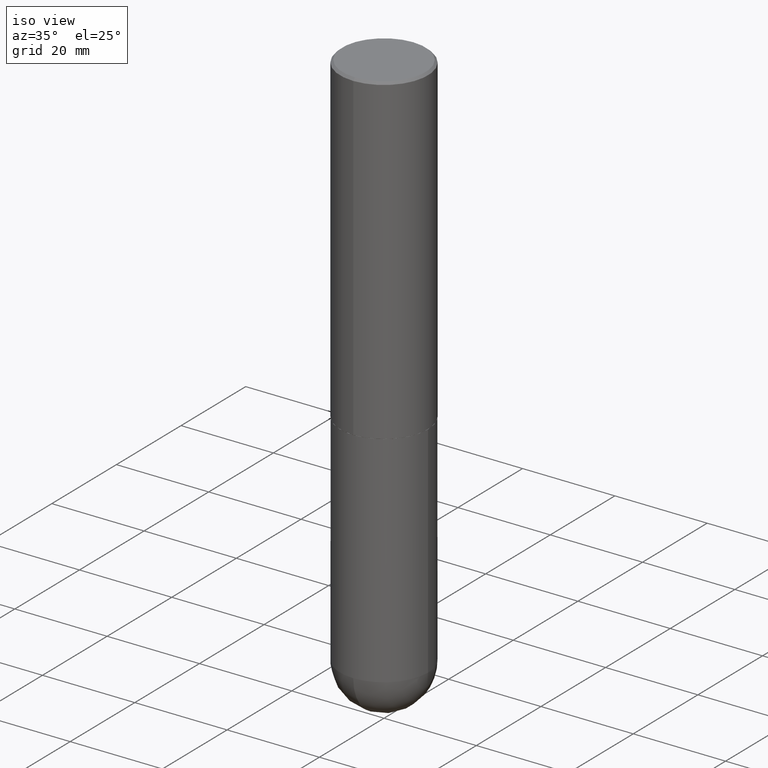
[diagram: clean part render]
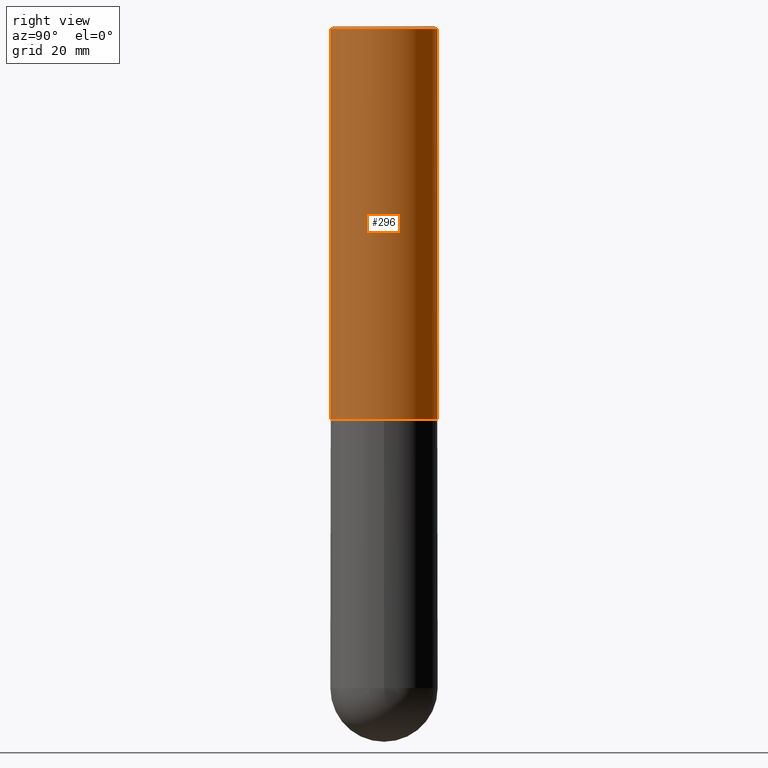
[diagram: tour spotlight — one face highlighted and labeled with its STEP entity id]
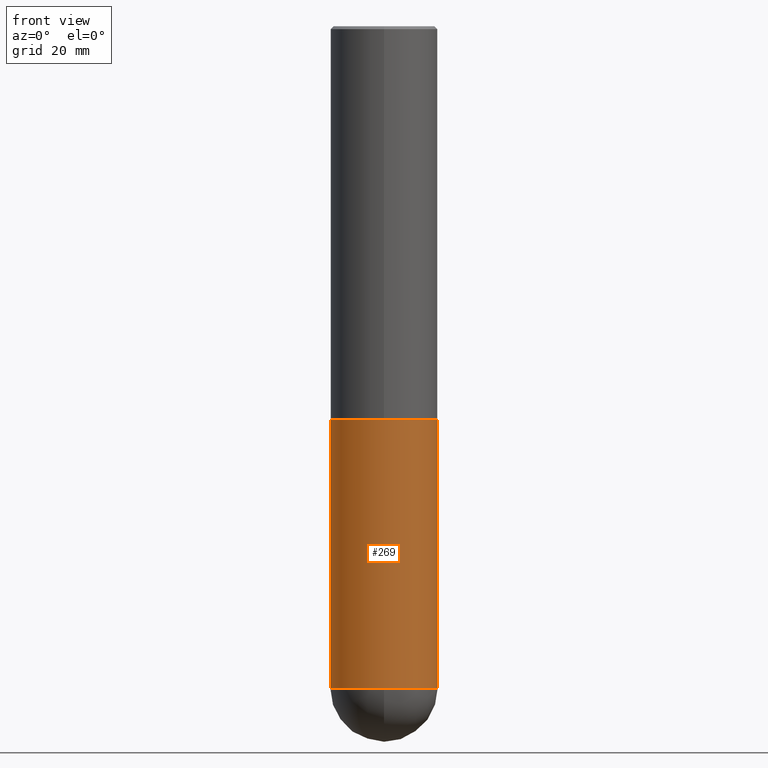
[diagram: tour spotlight — one face highlighted and labeled with its STEP entity id]
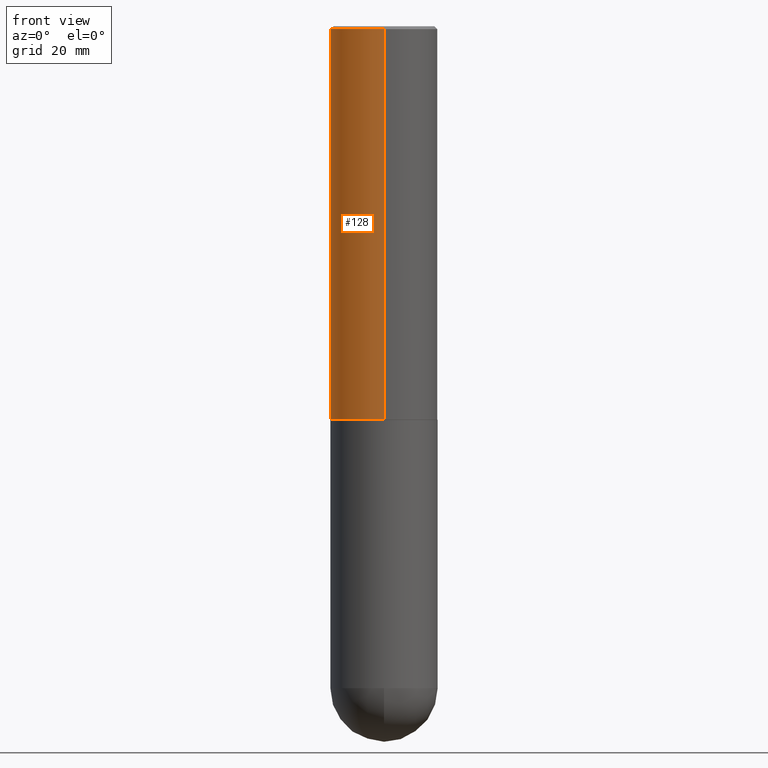
[diagram: tour spotlight — one face highlighted and labeled with its STEP entity id]
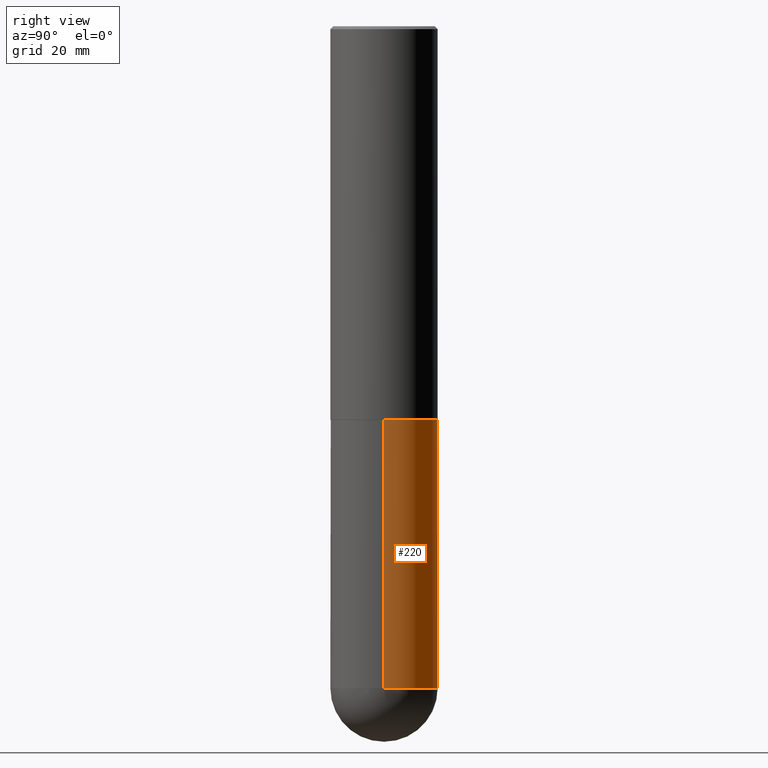
[diagram: tour spotlight — one face highlighted and labeled with its STEP entity id]
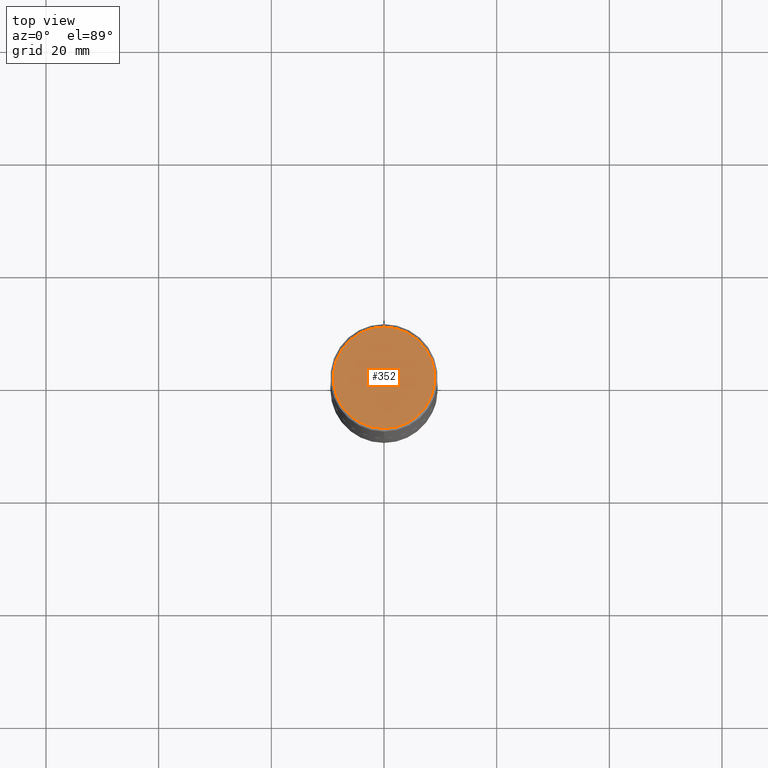
[diagram: tour spotlight — one face highlighted and labeled with its STEP entity id]
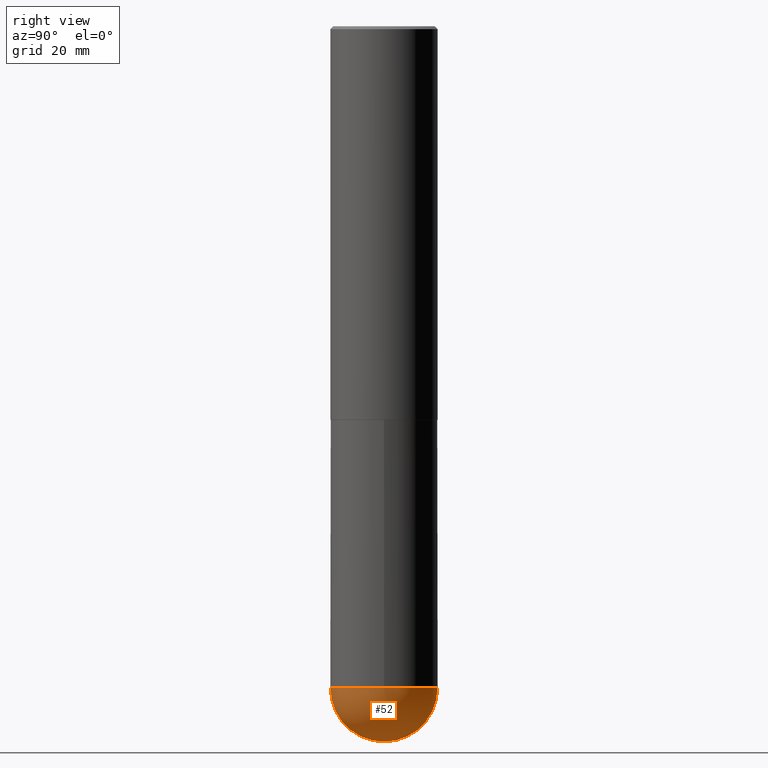
[diagram: tour spotlight — one face highlighted and labeled with its STEP entity id]
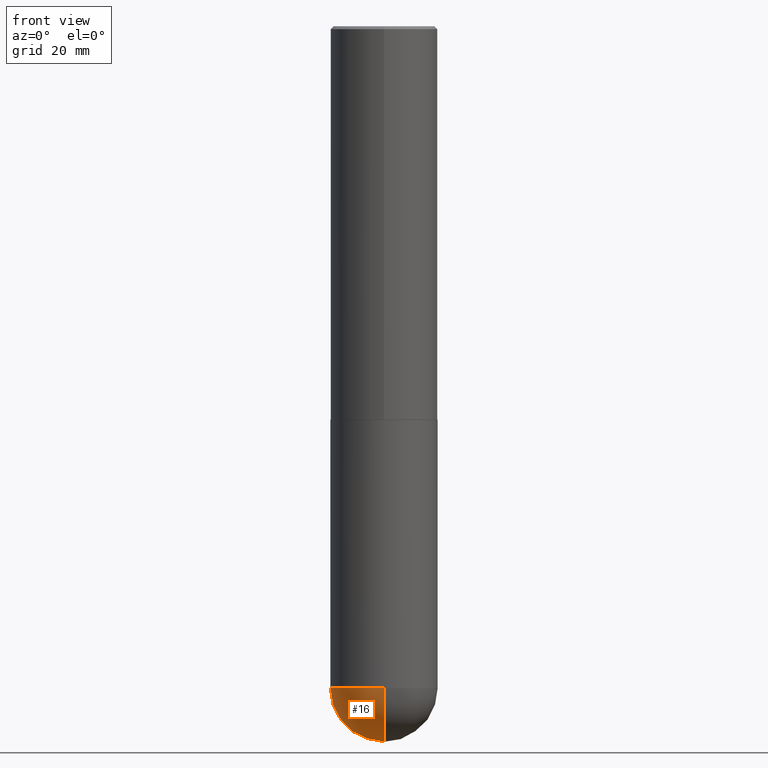
[diagram: tour spotlight — one face highlighted and labeled with its STEP entity id]
A machine part: a face-by-face anatomy tour. The part has 13 B-rep faces; the first image is the clean iso view, then the 7 largest visible faces are spotlighted one at a time (largest first), each with its STEP entity span.

Face 1 — right view, entity #296. In plain terms, the highlighted cylindrical surface (partial cylindrical patch) has radius 9.525 mm, axis along (-0, 0, 1).
Definition (entity closure, byte-faithful):
#2 = AXIS2_PLACEMENT_3D ( 'NONE', #162, #359, #22 ) ;
#19 = AXIS2_PLACEMENT_3D ( 'NONE', #330, #298, #24 ) ;
#22 = DIRECTION ( 'NONE',  ( -6.982962677686266711E-15, -1.000000000000000000, 3.494488891895537218E-15 ) ) ;
#24 = DIRECTION ( 'NONE',  ( -6.982962677686265922E-15, -1.000000000000000000, 2.913971193241877216E-15 ) ) ;
#36 = CARTESIAN_POINT ( 'NONE',  ( -2.572686749164323153E-15, -0.3750000000000000555, -0.01999999999999877570 ) ) ;
#43 = CARTESIAN_POINT ( 'NONE',  ( 2.618611004132350016E-15, 0.3749999999999998890, -0.02000000000000139513 ) ) ;
#46 = ORIENTED_EDGE ( 'NONE', *, *, #58, .F. ) ;
#49 = AXIS2_PLACEMENT_3D ( 'NONE', #69, #188, #156 ) ;
#50 = VERTEX_POINT ( 'NONE', #265 ) ;
#55 = VERTEX_POINT ( 'NONE', #43 ) ;
#58 = EDGE_CURVE ( 'NONE', #305, #55, #380, .T. ) ;
#62 = ORIENTED_EDGE ( 'NONE', *, *, #95, .T. ) ;
#69 = CARTESIAN_POINT ( 'NONE',  ( 0.000000000000000000, 0.000000000000000000, 0.000000000000000000 ) ) ;
#95 = EDGE_CURVE ( 'NONE', #260, #50, #312, .T. ) ;
#126 = LINE ( 'NONE', #322, #268 ) ;
#156 = DIRECTION ( 'NONE',  ( -6.982962677686266711E-15, -1.000000000000000000, 3.491348202247188767E-15 ) ) ;
#162 = CARTESIAN_POINT ( 'NONE',  ( 4.891123549946413576E-31, -6.982696404494408251E-17, -0.02000000000000008715 ) ) ;
#176 = ORIENTED_EDGE ( 'NONE', *, *, #274, .F. ) ;
#188 = DIRECTION ( 'NONE',  ( -2.445561774973196384E-29, 3.491348202247189162E-15, 1.000000000000000000 ) ) ;
#191 = DIRECTION ( 'NONE',  ( -2.445561774973196384E-29, 3.491348202247189162E-15, 1.000000000000000000 ) ) ;
#200 = EDGE_CURVE ( 'NONE', #50, #55, #337, .T. ) ;
#211 = VECTOR ( 'NONE', #378, 39.37007874015748143 ) ;
#225 = FACE_OUTER_BOUND ( 'NONE', #297, .T. ) ;
#260 = VERTEX_POINT ( 'NONE', #348 ) ;
#265 = CARTESIAN_POINT ( 'NONE',  ( 2.664535259100411985E-15, 0.3749999999999907851, -2.749000000000000998 ) ) ;
#268 = VECTOR ( 'NONE', #191, 39.37007874015748143 ) ;
#274 = EDGE_CURVE ( 'NONE', #260, #305, #126, .T. ) ;
#296 = ADVANCED_FACE ( 'NONE', ( #225 ), #357, .T. ) ;
#297 = EDGE_LOOP ( 'NONE', ( #62, #361, #46, #176 ) ) ;
#298 = DIRECTION ( 'NONE',  ( -2.445561774973196384E-29, 3.491348202247189162E-15, 1.000000000000000000 ) ) ;
#305 = VERTEX_POINT ( 'NONE', #36 ) ;
#312 = CIRCLE ( 'NONE', #19, 0.3750000000000004441 ) ;
#322 = CARTESIAN_POINT ( 'NONE',  ( -2.618611004132351594E-15, -0.3750000000000002220, 1.309255575842696626E-15 ) ) ;
#330 = CARTESIAN_POINT ( 'NONE',  ( 6.722849319401317549E-29, -9.597716207977523912E-15, -2.749000000000000110 ) ) ;
#337 = LINE ( 'NONE', #374, #211 ) ;
#348 = CARTESIAN_POINT ( 'NONE',  ( -2.618611004132285330E-15, -0.3750000000000100475, -2.748999999999999222 ) ) ;
#357 = CYLINDRICAL_SURFACE ( 'NONE', #49, 0.3750000000000002220 ) ;
#359 = DIRECTION ( 'NONE',  ( -2.445561774973196384E-29, 3.491348202247189162E-15, 1.000000000000000000 ) ) ;
#361 = ORIENTED_EDGE ( 'NONE', *, *, #200, .T. ) ;
#374 = CARTESIAN_POINT ( 'NONE',  ( 2.664535259100376880E-15, 0.3750000000000002220, -1.309255575842696626E-15 ) ) ;
#378 = DIRECTION ( 'NONE',  ( -2.445561774973196384E-29, 3.491348202247189162E-15, 1.000000000000000000 ) ) ;
#380 = CIRCLE ( 'NONE', #2, 0.3749999999999999445 ) ;

Face 2 — front view, entity #269. In plain terms, the highlighted cylindrical surface (partial cylindrical patch) has radius 9.525 mm, axis along (-0, 0, 1).
Definition (entity closure, byte-faithful):
#8 = CARTESIAN_POINT ( 'NONE',  ( -0.3750000000000001110, 2.664535259100376486E-15, -1.844600658845590159E-29 ) ) ;
#10 = DIRECTION ( 'NONE',  ( 1.000000000000000000, -6.982962677686265922E-15, 4.876176775795935793E-29 ) ) ;
#15 = CARTESIAN_POINT ( 'NONE',  ( -2.664535259100265651E-15, -0.3750000000000165978, -4.624999999999999112 ) ) ;
#26 = DIRECTION ( 'NONE',  ( -2.445468806185136597E-29, 3.491481338843145583E-15, 1.000000000000000000 ) ) ;
#29 = CIRCLE ( 'NONE', #345, 0.3750000000000001110 ) ;
#39 = CARTESIAN_POINT ( 'NONE',  ( 0.000000000000000000, 0.000000000000000000, 0.000000000000000000 ) ) ;
#47 = ORIENTED_EDGE ( 'NONE', *, *, #124, .T. ) ;
#60 = DIRECTION ( 'NONE',  ( 1.000000000000000000, -6.982962677686270655E-15, 0.000000000000000000 ) ) ;
#61 = CARTESIAN_POINT ( 'NONE',  ( 0.3750000000000000555, -1.222018468595100145E-14, -2.750000000000000000 ) ) ;
#85 = VERTEX_POINT ( 'NONE', #15 ) ;
#87 = ORIENTED_EDGE ( 'NONE', *, *, #314, .F. ) ;
#91 = VECTOR ( 'NONE', #247, 39.37007874015748143 ) ;
#93 = CARTESIAN_POINT ( 'NONE',  ( -0.3750000000000000555, -1.021030217788372194E-14, -2.750000000000000000 ) ) ;
#101 = DIRECTION ( 'NONE',  ( -2.445468806185136597E-29, 3.491481338843145583E-15, 1.000000000000000000 ) ) ;
#117 = DIRECTION ( 'NONE',  ( 1.000000000000000000, -6.982962677686270655E-15, 0.000000000000000000 ) ) ;
#124 = EDGE_CURVE ( 'NONE', #335, #85, #29, .T. ) ;
#127 = CYLINDRICAL_SURFACE ( 'NONE', #170, 0.3750000000000001110 ) ;
#142 = DIRECTION ( 'NONE',  ( -2.445468806185136597E-29, 3.491481338843145583E-15, 1.000000000000000000 ) ) ;
#143 = EDGE_CURVE ( 'NONE', #169, #195, #284, .T. ) ;
#149 = DIRECTION ( 'NONE',  ( -2.445468806185136877E-29, 3.491481338843145188E-15, 1.000000000000000000 ) ) ;
#157 = AXIS2_PLACEMENT_3D ( 'NONE', #183, #142, #336 ) ;
#169 = VERTEX_POINT ( 'NONE', #93 ) ;
#170 = AXIS2_PLACEMENT_3D ( 'NONE', #39, #101, #10 ) ;
#183 = CARTESIAN_POINT ( 'NONE',  ( 6.725039217009124520E-29, -9.601573681818649859E-15, -2.750000000000000000 ) ) ;
#184 = LINE ( 'NONE', #239, #333 ) ;
#195 = VERTEX_POINT ( 'NONE', #61 ) ;
#199 = EDGE_LOOP ( 'NONE', ( #87, #47, #403, #223, #325 ) ) ;
#215 = CARTESIAN_POINT ( 'NONE',  ( 0.3750000000000001110, -1.549344844111645238E-14, -4.625000000000000000 ) ) ;
#223 = ORIENTED_EDGE ( 'NONE', *, *, #360, .T. ) ;
#237 = AXIS2_PLACEMENT_3D ( 'NONE', #303, #26, #117 ) ;
#239 = CARTESIAN_POINT ( 'NONE',  ( 0.3750000000000001110, -2.618611004132350411E-15, 1.828566290923476483E-29 ) ) ;
#247 = DIRECTION ( 'NONE',  ( -2.445468806185136877E-29, 3.491481338843145188E-15, 1.000000000000000000 ) ) ;
#250 = FACE_OUTER_BOUND ( 'NONE', #199, .T. ) ;
#255 = CARTESIAN_POINT ( 'NONE',  ( 1.131029322860625676E-28, -1.614810119214955014E-14, -4.625000000000000000 ) ) ;
#269 = ADVANCED_FACE ( 'NONE', ( #250 ), #127, .T. ) ;
#284 = CIRCLE ( 'NONE', #157, 0.3750000000000000555 ) ;
#303 = CARTESIAN_POINT ( 'NONE',  ( 1.131029322860625676E-28, -1.614810119214955014E-14, -4.625000000000000000 ) ) ;
#314 = EDGE_CURVE ( 'NONE', #335, #169, #317, .T. ) ;
#317 = LINE ( 'NONE', #8, #91 ) ;
#318 = CARTESIAN_POINT ( 'NONE',  ( -0.3750000000000001110, -1.021030217788372352E-14, -4.625000000000000000 ) ) ;
#325 = ORIENTED_EDGE ( 'NONE', *, *, #143, .F. ) ;
#333 = VECTOR ( 'NONE', #149, 39.37007874015748143 ) ;
#335 = VERTEX_POINT ( 'NONE', #318 ) ;
#336 = DIRECTION ( 'NONE',  ( 1.000000000000000000, -6.982962677686266711E-15, 0.000000000000000000 ) ) ;
#345 = AXIS2_PLACEMENT_3D ( 'NONE', #255, #410, #60 ) ;
#360 = EDGE_CURVE ( 'NONE', #394, #195, #184, .T. ) ;
#376 = EDGE_CURVE ( 'NONE', #85, #394, #391, .T. ) ;
#391 = CIRCLE ( 'NONE', #237, 0.3750000000000001110 ) ;
#394 = VERTEX_POINT ( 'NONE', #215 ) ;
#403 = ORIENTED_EDGE ( 'NONE', *, *, #376, .T. ) ;
#410 = DIRECTION ( 'NONE',  ( -2.445468806185136597E-29, 3.491481338843145583E-15, 1.000000000000000000 ) ) ;

Face 3 — front view, entity #128. In plain terms, the highlighted cylindrical surface (partial cylindrical patch) has radius 9.525 mm, axis along (-0, 0, 1).
Definition (entity closure, byte-faithful):
#21 = ORIENTED_EDGE ( 'NONE', *, *, #235, .T. ) ;
#28 = CARTESIAN_POINT ( 'NONE',  ( 0.000000000000000000, 0.000000000000000000, 0.000000000000000000 ) ) ;
#36 = CARTESIAN_POINT ( 'NONE',  ( -2.572686749164323153E-15, -0.3750000000000000555, -0.01999999999999877570 ) ) ;
#43 = CARTESIAN_POINT ( 'NONE',  ( 2.618611004132350016E-15, 0.3749999999999998890, -0.02000000000000139513 ) ) ;
#50 = VERTEX_POINT ( 'NONE', #265 ) ;
#55 = VERTEX_POINT ( 'NONE', #43 ) ;
#57 = AXIS2_PLACEMENT_3D ( 'NONE', #276, #412, #278 ) ;
#90 = CYLINDRICAL_SURFACE ( 'NONE', #307, 0.3750000000000002220 ) ;
#98 = CIRCLE ( 'NONE', #402, 0.3750000000000004441 ) ;
#126 = LINE ( 'NONE', #322, #268 ) ;
#128 = ADVANCED_FACE ( 'NONE', ( #205 ), #90, .T. ) ;
#132 = CIRCLE ( 'NONE', #57, 0.3749999999999999445 ) ;
#136 = ORIENTED_EDGE ( 'NONE', *, *, #274, .T. ) ;
#185 = DIRECTION ( 'NONE',  ( -2.445561774973196384E-29, 3.491348202247189162E-15, 1.000000000000000000 ) ) ;
#191 = DIRECTION ( 'NONE',  ( -2.445561774973196384E-29, 3.491348202247189162E-15, 1.000000000000000000 ) ) ;
#193 = EDGE_LOOP ( 'NONE', ( #226, #21, #136, #332 ) ) ;
#200 = EDGE_CURVE ( 'NONE', #50, #55, #337, .T. ) ;
#205 = FACE_OUTER_BOUND ( 'NONE', #193, .T. ) ;
#211 = VECTOR ( 'NONE', #378, 39.37007874015748143 ) ;
#226 = ORIENTED_EDGE ( 'NONE', *, *, #200, .F. ) ;
#235 = EDGE_CURVE ( 'NONE', #50, #260, #98, .T. ) ;
#243 = DIRECTION ( 'NONE',  ( -6.982962677686266711E-15, -1.000000000000000000, 3.491348202247188767E-15 ) ) ;
#260 = VERTEX_POINT ( 'NONE', #348 ) ;
#265 = CARTESIAN_POINT ( 'NONE',  ( 2.664535259100411985E-15, 0.3749999999999907851, -2.749000000000000998 ) ) ;
#268 = VECTOR ( 'NONE', #191, 39.37007874015748143 ) ;
#274 = EDGE_CURVE ( 'NONE', #260, #305, #126, .T. ) ;
#275 = DIRECTION ( 'NONE',  ( -2.445561774973196384E-29, 3.491348202247189162E-15, 1.000000000000000000 ) ) ;
#276 = CARTESIAN_POINT ( 'NONE',  ( 4.891123549946413576E-31, -6.982696404494408251E-17, -0.02000000000000008715 ) ) ;
#278 = DIRECTION ( 'NONE',  ( -6.982962677686266711E-15, -1.000000000000000000, 3.494488891895537218E-15 ) ) ;
#305 = VERTEX_POINT ( 'NONE', #36 ) ;
#307 = AXIS2_PLACEMENT_3D ( 'NONE', #28, #275, #243 ) ;
#311 = DIRECTION ( 'NONE',  ( -6.982962677686265922E-15, -1.000000000000000000, 2.913971193241877216E-15 ) ) ;
#322 = CARTESIAN_POINT ( 'NONE',  ( -2.618611004132351594E-15, -0.3750000000000002220, 1.309255575842696626E-15 ) ) ;
#332 = ORIENTED_EDGE ( 'NONE', *, *, #368, .F. ) ;
#337 = LINE ( 'NONE', #374, #211 ) ;
#341 = CARTESIAN_POINT ( 'NONE',  ( 6.722849319401317549E-29, -9.597716207977523912E-15, -2.749000000000000110 ) ) ;
#348 = CARTESIAN_POINT ( 'NONE',  ( -2.618611004132285330E-15, -0.3750000000000100475, -2.748999999999999222 ) ) ;
#368 = EDGE_CURVE ( 'NONE', #55, #305, #132, .T. ) ;
#374 = CARTESIAN_POINT ( 'NONE',  ( 2.664535259100376880E-15, 0.3750000000000002220, -1.309255575842696626E-15 ) ) ;
#378 = DIRECTION ( 'NONE',  ( -2.445561774973196384E-29, 3.491348202247189162E-15, 1.000000000000000000 ) ) ;
#402 = AXIS2_PLACEMENT_3D ( 'NONE', #341, #185, #311 ) ;
#412 = DIRECTION ( 'NONE',  ( -2.445561774973196384E-29, 3.491348202247189162E-15, 1.000000000000000000 ) ) ;

Face 4 — right view, entity #220. In plain terms, the highlighted cylindrical surface (partial cylindrical patch) has radius 9.525 mm, axis along (-0, 0, 1).
Definition (entity closure, byte-faithful):
#8 = CARTESIAN_POINT ( 'NONE',  ( -0.3750000000000001110, 2.664535259100376486E-15, -1.844600658845590159E-29 ) ) ;
#30 = AXIS2_PLACEMENT_3D ( 'NONE', #277, #373, #123 ) ;
#31 = ORIENTED_EDGE ( 'NONE', *, *, #178, .F. ) ;
#40 = EDGE_CURVE ( 'NONE', #302, #335, #181, .T. ) ;
#45 = CARTESIAN_POINT ( 'NONE',  ( 1.131029322860625676E-28, -1.614810119214955014E-14, -4.625000000000000000 ) ) ;
#61 = CARTESIAN_POINT ( 'NONE',  ( 0.3750000000000000555, -1.222018468595100145E-14, -2.750000000000000000 ) ) ;
#84 = ORIENTED_EDGE ( 'NONE', *, *, #40, .T. ) ;
#89 = CYLINDRICAL_SURFACE ( 'NONE', #113, 0.3750000000000001110 ) ;
#91 = VECTOR ( 'NONE', #247, 39.37007874015748143 ) ;
#93 = CARTESIAN_POINT ( 'NONE',  ( -0.3750000000000000555, -1.021030217788372194E-14, -2.750000000000000000 ) ) ;
#107 = ORIENTED_EDGE ( 'NONE', *, *, #360, .F. ) ;
#113 = AXIS2_PLACEMENT_3D ( 'NONE', #375, #405, #145 ) ;
#119 = FACE_OUTER_BOUND ( 'NONE', #131, .T. ) ;
#123 = DIRECTION ( 'NONE',  ( 1.000000000000000000, -6.982962677686266711E-15, 0.000000000000000000 ) ) ;
#131 = EDGE_LOOP ( 'NONE', ( #84, #264, #31, #107, #254 ) ) ;
#145 = DIRECTION ( 'NONE',  ( 1.000000000000000000, -6.982962677686265922E-15, 4.876176775795935793E-29 ) ) ;
#149 = DIRECTION ( 'NONE',  ( -2.445468806185136877E-29, 3.491481338843145188E-15, 1.000000000000000000 ) ) ;
#169 = VERTEX_POINT ( 'NONE', #93 ) ;
#173 = DIRECTION ( 'NONE',  ( 1.000000000000000000, -6.982962677686270655E-15, 0.000000000000000000 ) ) ;
#178 = EDGE_CURVE ( 'NONE', #195, #169, #259, .T. ) ;
#181 = CIRCLE ( 'NONE', #271, 0.3750000000000001110 ) ;
#184 = LINE ( 'NONE', #239, #333 ) ;
#190 = DIRECTION ( 'NONE',  ( -2.445468806185136597E-29, 3.491481338843145583E-15, 1.000000000000000000 ) ) ;
#195 = VERTEX_POINT ( 'NONE', #61 ) ;
#215 = CARTESIAN_POINT ( 'NONE',  ( 0.3750000000000001110, -1.549344844111645238E-14, -4.625000000000000000 ) ) ;
#220 = ADVANCED_FACE ( 'NONE', ( #119 ), #89, .T. ) ;
#239 = CARTESIAN_POINT ( 'NONE',  ( 0.3750000000000001110, -2.618611004132350411E-15, 1.828566290923476483E-29 ) ) ;
#247 = DIRECTION ( 'NONE',  ( -2.445468806185136877E-29, 3.491481338843145188E-15, 1.000000000000000000 ) ) ;
#254 = ORIENTED_EDGE ( 'NONE', *, *, #288, .T. ) ;
#257 = DIRECTION ( 'NONE',  ( 1.000000000000000000, -6.982962677686270655E-15, 0.000000000000000000 ) ) ;
#259 = CIRCLE ( 'NONE', #30, 0.3750000000000000555 ) ;
#264 = ORIENTED_EDGE ( 'NONE', *, *, #314, .T. ) ;
#271 = AXIS2_PLACEMENT_3D ( 'NONE', #321, #295, #173 ) ;
#277 = CARTESIAN_POINT ( 'NONE',  ( 6.725039217009124520E-29, -9.601573681818649859E-15, -2.750000000000000000 ) ) ;
#288 = EDGE_CURVE ( 'NONE', #394, #302, #313, .T. ) ;
#295 = DIRECTION ( 'NONE',  ( -2.445468806185136597E-29, 3.491481338843145583E-15, 1.000000000000000000 ) ) ;
#302 = VERTEX_POINT ( 'NONE', #315 ) ;
#308 = AXIS2_PLACEMENT_3D ( 'NONE', #45, #190, #257 ) ;
#313 = CIRCLE ( 'NONE', #308, 0.3750000000000001110 ) ;
#314 = EDGE_CURVE ( 'NONE', #335, #169, #317, .T. ) ;
#315 = CARTESIAN_POINT ( 'NONE',  ( 2.618611004132463218E-15, 0.3749999999999838463, -4.625000000000000888 ) ) ;
#317 = LINE ( 'NONE', #8, #91 ) ;
#318 = CARTESIAN_POINT ( 'NONE',  ( -0.3750000000000001110, -1.021030217788372352E-14, -4.625000000000000000 ) ) ;
#321 = CARTESIAN_POINT ( 'NONE',  ( 1.131029322860625676E-28, -1.614810119214955014E-14, -4.625000000000000000 ) ) ;
#333 = VECTOR ( 'NONE', #149, 39.37007874015748143 ) ;
#335 = VERTEX_POINT ( 'NONE', #318 ) ;
#360 = EDGE_CURVE ( 'NONE', #394, #195, #184, .T. ) ;
#373 = DIRECTION ( 'NONE',  ( -2.445468806185136597E-29, 3.491481338843145583E-15, 1.000000000000000000 ) ) ;
#375 = CARTESIAN_POINT ( 'NONE',  ( 0.000000000000000000, 0.000000000000000000, 0.000000000000000000 ) ) ;
#394 = VERTEX_POINT ( 'NONE', #215 ) ;
#405 = DIRECTION ( 'NONE',  ( -2.445468806185136597E-29, 3.491481338843145583E-15, 1.000000000000000000 ) ) ;

Face 5 — top view, entity #352. In plain terms, the highlighted planar face has unit normal (0, -0, -1).
Definition (entity closure, byte-faithful):
#3 = CARTESIAN_POINT ( 'NONE',  ( -2.921739217016642463E-45, 4.171151621339831914E-31, 1.194710862312470244E-16 ) ) ;
#25 = VERTEX_POINT ( 'NONE', #76 ) ;
#76 = CARTESIAN_POINT ( 'NONE',  ( 2.548781377355486718E-15, 0.3549999999999998157, -1.119957525566504299E-15 ) ) ;
#79 = ORIENTED_EDGE ( 'NONE', *, *, #371, .T. ) ;
#115 = DIRECTION ( 'NONE',  ( 6.982962677686265922E-15, 1.000000000000000000, -3.491348202247189162E-15 ) ) ;
#121 = DIRECTION ( 'NONE',  ( -2.445561774973196384E-29, 3.491348202247189162E-15, 1.000000000000000000 ) ) ;
#148 = VERTEX_POINT ( 'NONE', #306 ) ;
#154 = CIRCLE ( 'NONE', #187, 0.3549999999999998157 ) ;
#160 = DIRECTION ( 'NONE',  ( -6.982962677686266711E-15, -1.000000000000000000, 3.491348202247189162E-15 ) ) ;
#182 = PLANE ( 'NONE',  #320 ) ;
#187 = AXIS2_PLACEMENT_3D ( 'NONE', #3, #121, #214 ) ;
#207 = CARTESIAN_POINT ( 'NONE',  ( 2.478951750578623420E-15, 0.3549999999999998157, -1.179693068682128070E-15 ) ) ;
#210 = FACE_OUTER_BOUND ( 'NONE', #383, .T. ) ;
#214 = DIRECTION ( 'NONE',  ( -6.982962677686266711E-15, -1.000000000000000000, 3.491348202247189162E-15 ) ) ;
#222 = CARTESIAN_POINT ( 'NONE',  ( -2.921739217016642463E-45, 4.171151621339831914E-31, 1.194710862312470244E-16 ) ) ;
#266 = EDGE_CURVE ( 'NONE', #25, #148, #346, .T. ) ;
#282 = DIRECTION ( 'NONE',  ( -2.445561774973196384E-29, 3.491348202247189162E-15, 1.000000000000000000 ) ) ;
#306 = CARTESIAN_POINT ( 'NONE',  ( -2.504081769186607821E-15, -0.3549999999999998157, 1.358899698028998397E-15 ) ) ;
#320 = AXIS2_PLACEMENT_3D ( 'NONE', #207, #408, #115 ) ;
#329 = ORIENTED_EDGE ( 'NONE', *, *, #266, .T. ) ;
#346 = CIRCLE ( 'NONE', #406, 0.3549999999999998157 ) ;
#352 = ADVANCED_FACE ( 'NONE', ( #210 ), #182, .F. ) ;
#371 = EDGE_CURVE ( 'NONE', #148, #25, #154, .T. ) ;
#383 = EDGE_LOOP ( 'NONE', ( #329, #79 ) ) ;
#406 = AXIS2_PLACEMENT_3D ( 'NONE', #222, #282, #160 ) ;
#408 = DIRECTION ( 'NONE',  ( 2.445561774973196103E-29, -3.491348202247189162E-15, -1.000000000000000000 ) ) ;

Face 6 — right view, entity #52. In plain terms, the highlighted spherical surface has radius 9.525 mm.
Definition (entity closure, byte-faithful):
#11 = AXIS2_PLACEMENT_3D ( 'NONE', #139, #130, #354 ) ;
#15 = CARTESIAN_POINT ( 'NONE',  ( -2.664535259100265651E-15, -0.3750000000000165978, -4.624999999999999112 ) ) ;
#20 = AXIS2_PLACEMENT_3D ( 'NONE', #59, #144, #270 ) ;
#23 = ORIENTED_EDGE ( 'NONE', *, *, #108, .T. ) ;
#26 = DIRECTION ( 'NONE',  ( -2.445468806185136597E-29, 3.491481338843145583E-15, 1.000000000000000000 ) ) ;
#45 = CARTESIAN_POINT ( 'NONE',  ( 1.131029322860625676E-28, -1.614810119214955014E-14, -4.625000000000000000 ) ) ;
#52 = ADVANCED_FACE ( 'NONE', ( #133 ), #262, .T. ) ;
#59 = CARTESIAN_POINT ( 'NONE',  ( 1.097917345069237163E-28, -1.662228356028959886E-14, -4.625000000000000000 ) ) ;
#66 = CIRCLE ( 'NONE', #11, 0.3750000000000003886 ) ;
#85 = VERTEX_POINT ( 'NONE', #15 ) ;
#105 = ORIENTED_EDGE ( 'NONE', *, *, #376, .F. ) ;
#108 = EDGE_CURVE ( 'NONE', #367, #302, #66, .T. ) ;
#117 = DIRECTION ( 'NONE',  ( 1.000000000000000000, -6.982962677686270655E-15, 0.000000000000000000 ) ) ;
#130 = DIRECTION ( 'NONE',  ( 1.000000000000000000, -6.982962677686265922E-15, 4.883557194083112340E-29 ) ) ;
#133 = FACE_OUTER_BOUND ( 'NONE', #323, .T. ) ;
#137 = DIRECTION ( 'NONE',  ( -1.000000000000000000, 6.982962677686266711E-15, -4.883557194083113462E-29 ) ) ;
#139 = CARTESIAN_POINT ( 'NONE',  ( 1.097917345069237163E-28, -1.662228356028959886E-14, -4.625000000000000000 ) ) ;
#144 = DIRECTION ( 'NONE',  ( -1.000000000000000000, 7.105427357601001070E-15, -4.926315508542082329E-29 ) ) ;
#147 = EDGE_CURVE ( 'NONE', #367, #85, #293, .T. ) ;
#180 = CARTESIAN_POINT ( 'NONE',  ( 1.191225862093391378E-28, -1.790862693487176734E-14, -5.000000000000000000 ) ) ;
#190 = DIRECTION ( 'NONE',  ( -2.445468806185136597E-29, 3.491481338843145583E-15, 1.000000000000000000 ) ) ;
#215 = CARTESIAN_POINT ( 'NONE',  ( 0.3750000000000001110, -1.549344844111645238E-14, -4.625000000000000000 ) ) ;
#229 = ORIENTED_EDGE ( 'NONE', *, *, #288, .F. ) ;
#237 = AXIS2_PLACEMENT_3D ( 'NONE', #303, #26, #117 ) ;
#257 = DIRECTION ( 'NONE',  ( 1.000000000000000000, -6.982962677686270655E-15, 0.000000000000000000 ) ) ;
#262 = SPHERICAL_SURFACE ( 'NONE', #404, 0.3750000000000003886 ) ;
#270 = DIRECTION ( 'NONE',  ( -7.105427357600999492E-15, -1.000000000000000000, 0.000000000000000000 ) ) ;
#288 = EDGE_CURVE ( 'NONE', #394, #302, #313, .T. ) ;
#291 = ORIENTED_EDGE ( 'NONE', *, *, #147, .F. ) ;
#293 = CIRCLE ( 'NONE', #20, 0.3750000000000003886 ) ;
#302 = VERTEX_POINT ( 'NONE', #315 ) ;
#303 = CARTESIAN_POINT ( 'NONE',  ( 1.131029322860625676E-28, -1.614810119214955014E-14, -4.625000000000000000 ) ) ;
#308 = AXIS2_PLACEMENT_3D ( 'NONE', #45, #190, #257 ) ;
#313 = CIRCLE ( 'NONE', #308, 0.3750000000000001110 ) ;
#315 = CARTESIAN_POINT ( 'NONE',  ( 2.618611004132463218E-15, 0.3749999999999838463, -4.625000000000000888 ) ) ;
#323 = EDGE_LOOP ( 'NONE', ( #291, #23, #229, #105 ) ) ;
#354 = DIRECTION ( 'NONE',  ( 6.982962677686265922E-15, 1.000000000000000000, 0.000000000000000000 ) ) ;
#367 = VERTEX_POINT ( 'NONE', #180 ) ;
#376 = EDGE_CURVE ( 'NONE', #85, #394, #391, .T. ) ;
#391 = CIRCLE ( 'NONE', #237, 0.3750000000000001110 ) ;
#394 = VERTEX_POINT ( 'NONE', #215 ) ;
#395 = CARTESIAN_POINT ( 'NONE',  ( 1.097917345069237163E-28, -1.662228356028959886E-14, -4.625000000000000000 ) ) ;
#401 = DIRECTION ( 'NONE',  ( 6.982962677686266711E-15, 1.000000000000000000, -2.913971193241878005E-15 ) ) ;
#404 = AXIS2_PLACEMENT_3D ( 'NONE', #395, #137, #401 ) ;

Face 7 — front view, entity #16. In plain terms, the highlighted spherical surface has radius 9.525 mm.
Definition (entity closure, byte-faithful):
#11 = AXIS2_PLACEMENT_3D ( 'NONE', #139, #130, #354 ) ;
#15 = CARTESIAN_POINT ( 'NONE',  ( -2.664535259100265651E-15, -0.3750000000000165978, -4.624999999999999112 ) ) ;
#16 = ADVANCED_FACE ( 'NONE', ( #37 ), #81, .T. ) ;
#18 = ORIENTED_EDGE ( 'NONE', *, *, #147, .T. ) ;
#20 = AXIS2_PLACEMENT_3D ( 'NONE', #59, #144, #270 ) ;
#29 = CIRCLE ( 'NONE', #345, 0.3750000000000001110 ) ;
#37 = FACE_OUTER_BOUND ( 'NONE', #353, .T. ) ;
#40 = EDGE_CURVE ( 'NONE', #302, #335, #181, .T. ) ;
#59 = CARTESIAN_POINT ( 'NONE',  ( 1.097917345069237163E-28, -1.662228356028959886E-14, -4.625000000000000000 ) ) ;
#60 = DIRECTION ( 'NONE',  ( 1.000000000000000000, -6.982962677686270655E-15, 0.000000000000000000 ) ) ;
#66 = CIRCLE ( 'NONE', #11, 0.3750000000000003886 ) ;
#81 = SPHERICAL_SURFACE ( 'NONE', #363, 0.3750000000000003886 ) ;
#85 = VERTEX_POINT ( 'NONE', #15 ) ;
#102 = DIRECTION ( 'NONE',  ( -1.000000000000000000, 6.982962677686266711E-15, -4.883557194083113462E-29 ) ) ;
#108 = EDGE_CURVE ( 'NONE', #367, #302, #66, .T. ) ;
#124 = EDGE_CURVE ( 'NONE', #335, #85, #29, .T. ) ;
#130 = DIRECTION ( 'NONE',  ( 1.000000000000000000, -6.982962677686265922E-15, 4.883557194083112340E-29 ) ) ;
#139 = CARTESIAN_POINT ( 'NONE',  ( 1.097917345069237163E-28, -1.662228356028959886E-14, -4.625000000000000000 ) ) ;
#144 = DIRECTION ( 'NONE',  ( -1.000000000000000000, 7.105427357601001070E-15, -4.926315508542082329E-29 ) ) ;
#147 = EDGE_CURVE ( 'NONE', #367, #85, #293, .T. ) ;
#165 = ORIENTED_EDGE ( 'NONE', *, *, #124, .F. ) ;
#171 = CARTESIAN_POINT ( 'NONE',  ( 1.097917345069237163E-28, -1.662228356028959886E-14, -4.625000000000000000 ) ) ;
#173 = DIRECTION ( 'NONE',  ( 1.000000000000000000, -6.982962677686270655E-15, 0.000000000000000000 ) ) ;
#174 = ORIENTED_EDGE ( 'NONE', *, *, #108, .F. ) ;
#180 = CARTESIAN_POINT ( 'NONE',  ( 1.191225862093391378E-28, -1.790862693487176734E-14, -5.000000000000000000 ) ) ;
#181 = CIRCLE ( 'NONE', #271, 0.3750000000000001110 ) ;
#227 = DIRECTION ( 'NONE',  ( 6.982962677686266711E-15, 1.000000000000000000, -2.913971193241878005E-15 ) ) ;
#255 = CARTESIAN_POINT ( 'NONE',  ( 1.131029322860625676E-28, -1.614810119214955014E-14, -4.625000000000000000 ) ) ;
#270 = DIRECTION ( 'NONE',  ( -7.105427357600999492E-15, -1.000000000000000000, 0.000000000000000000 ) ) ;
#271 = AXIS2_PLACEMENT_3D ( 'NONE', #321, #295, #173 ) ;
#293 = CIRCLE ( 'NONE', #20, 0.3750000000000003886 ) ;
#295 = DIRECTION ( 'NONE',  ( -2.445468806185136597E-29, 3.491481338843145583E-15, 1.000000000000000000 ) ) ;
#302 = VERTEX_POINT ( 'NONE', #315 ) ;
#315 = CARTESIAN_POINT ( 'NONE',  ( 2.618611004132463218E-15, 0.3749999999999838463, -4.625000000000000888 ) ) ;
#318 = CARTESIAN_POINT ( 'NONE',  ( -0.3750000000000001110, -1.021030217788372352E-14, -4.625000000000000000 ) ) ;
#321 = CARTESIAN_POINT ( 'NONE',  ( 1.131029322860625676E-28, -1.614810119214955014E-14, -4.625000000000000000 ) ) ;
#335 = VERTEX_POINT ( 'NONE', #318 ) ;
#345 = AXIS2_PLACEMENT_3D ( 'NONE', #255, #410, #60 ) ;
#353 = EDGE_LOOP ( 'NONE', ( #174, #18, #165, #355 ) ) ;
#354 = DIRECTION ( 'NONE',  ( 6.982962677686265922E-15, 1.000000000000000000, 0.000000000000000000 ) ) ;
#355 = ORIENTED_EDGE ( 'NONE', *, *, #40, .F. ) ;
#363 = AXIS2_PLACEMENT_3D ( 'NONE', #171, #102, #227 ) ;
#367 = VERTEX_POINT ( 'NONE', #180 ) ;
#410 = DIRECTION ( 'NONE',  ( -2.445468806185136597E-29, 3.491481338843145583E-15, 1.000000000000000000 ) ) ;